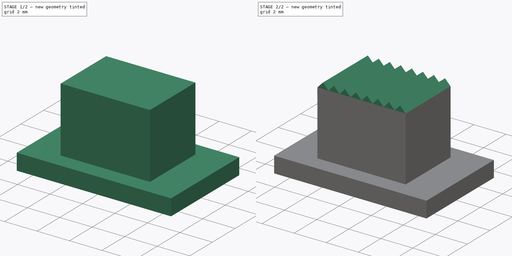
[diagram: build sequence overview — one tinted view per stage of 2, left to right]
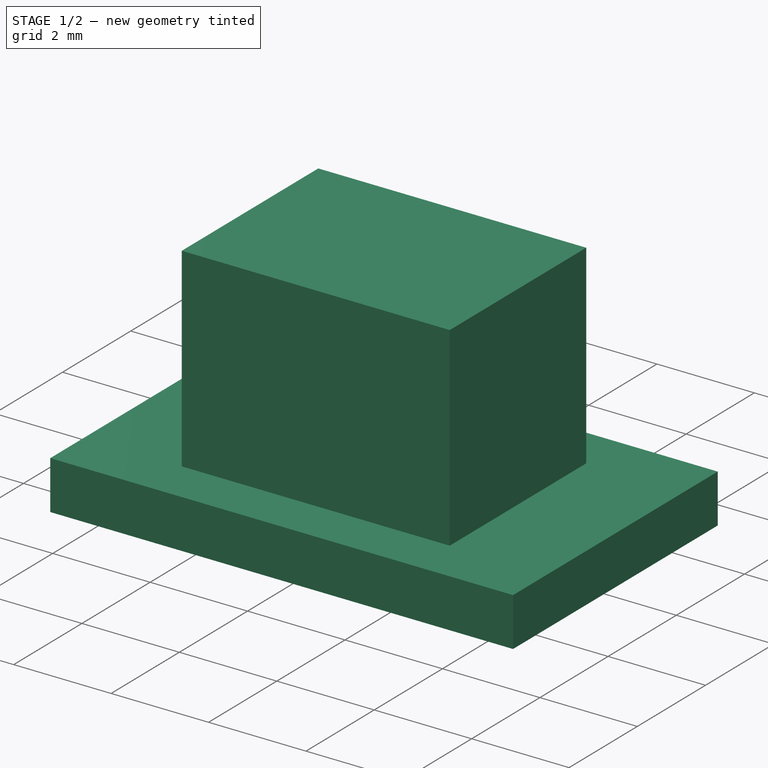
[diagram: stage 1 of 2 — iso view after this stage's code; geometry added in this stage tinted green]
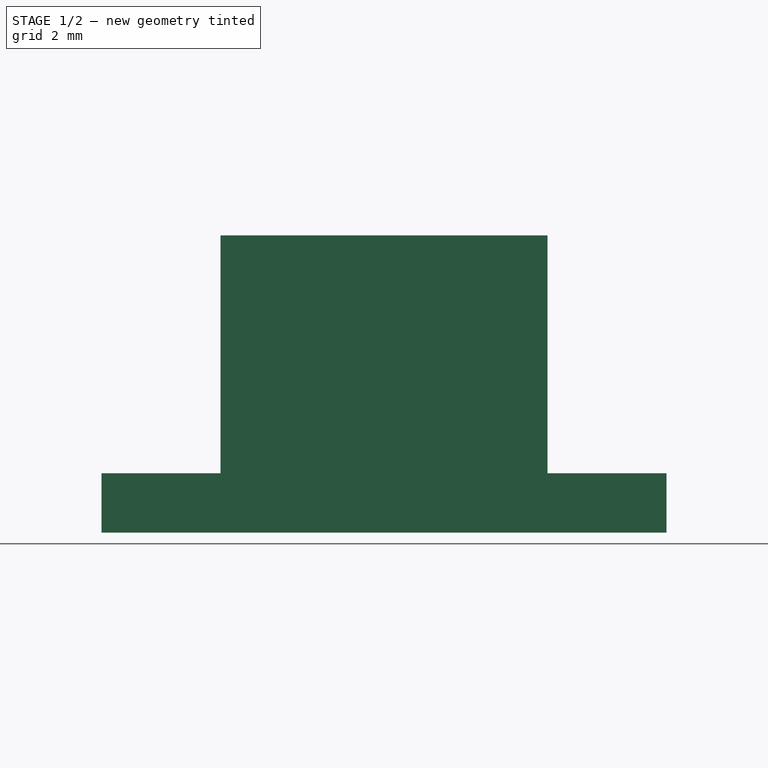
[diagram: stage 1 of 2 — front view after this stage's code; geometry added in this stage tinted green]
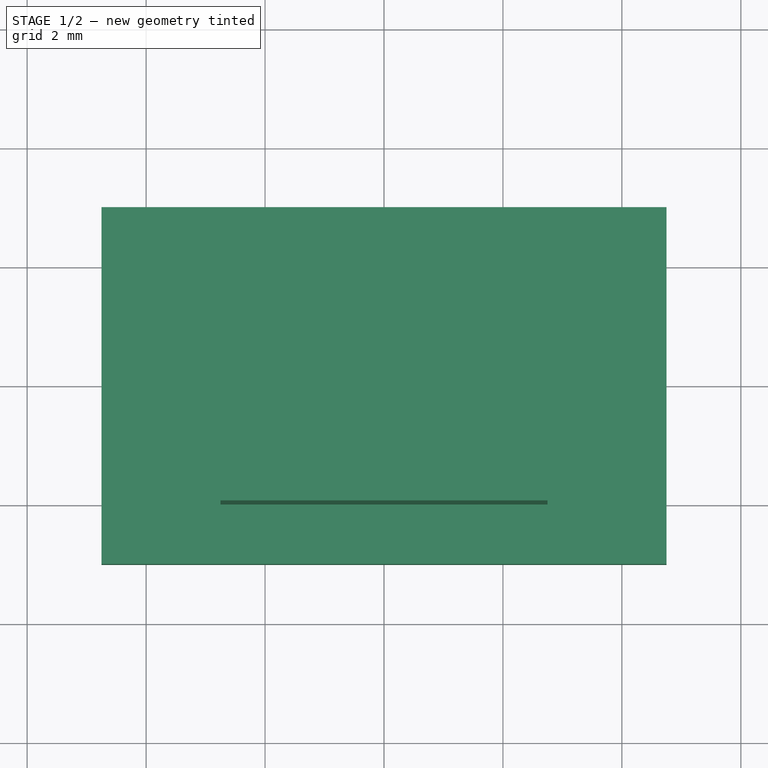
[diagram: stage 1 of 2 — top view after this stage's code; geometry added in this stage tinted green]
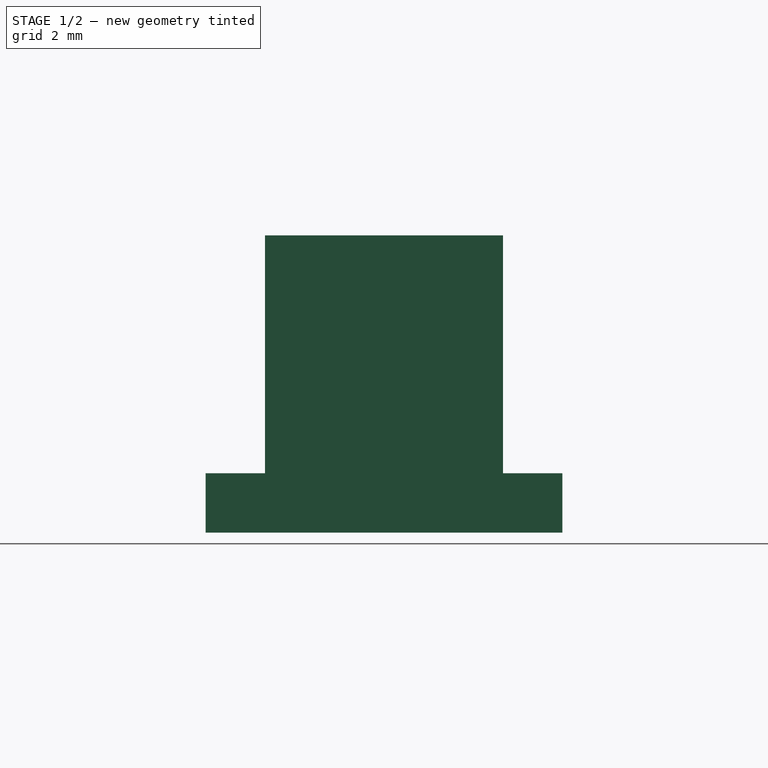
[diagram: stage 1 of 2 — right view after this stage's code; geometry added in this stage tinted green]
FCSTD DOCUMENT  (FreeCAD 0.19R24276 (Git))
Label: TFT_esp32onoff
License: All rights reserved
LicenseURL: http://en.wikipedia.org/wiki/All_rights_reserved
objects: Sketcher::SketchObject×4, PartDesign::Pad×3, PartDesign::Pocket×1, PartDesign::Body×1
note: 13 computed .brp shape members not serialized (recipe doc carries the construction recipe); baked Part::Feature solids carry a one-line shape summary decoded from their .brp

FEATURE [Sketcher::SketchObject] Sketch
  FullyConstrained = true
  MapMode = 5
  Support = -> [XY_Plane]
  sketch-geometry (8):
    g0: LineSegment StartX=-4.75 StartY=3 StartZ=0 EndX=4.75 EndY=3 EndZ=0
    g1: LineSegment StartX=4.75 StartY=3 StartZ=0 EndX=4.75 EndY=-3 EndZ=0
    g2: LineSegment StartX=4.75 StartY=-3 StartZ=0 EndX=-4.75 EndY=-3 EndZ=0
    g3: LineSegment StartX=-4.75 StartY=-3 StartZ=0 EndX=-4.75 EndY=3 EndZ=0
    g4: LineSegment StartX=0.6 StartY=0.675 StartZ=0 EndX=2.25 EndY=0.675 EndZ=0
    g5: LineSegment StartX=2.25 StartY=0.675 StartZ=0 EndX=2.25 EndY=-0.675 EndZ=0
    g6: LineSegment StartX=2.25 StartY=-0.675 StartZ=0 EndX=0.6 EndY=-0.675 EndZ=0
    g7: LineSegment StartX=0.6 StartY=-0.675 StartZ=0 EndX=0.6 EndY=0.675 EndZ=0
  constraints (21):
    c: Coincident(g0,g1)
    c: Coincident(g1,g2)
    c: Coincident(g2,g3)
    c: Coincident(g3,g0)
    c: Horizontal(g2)
    c: Vertical(g3)
    c: DistanceX(g0,g0) = 9.5
    c: DistanceY(g1,g1) = 6
    c: Coincident(g4,g5)
    c: Coincident(g5,g6)
    c: Coincident(g6,g7)
    c: Coincident(g7,g4)
    c: Horizontal(g4)
    c: Horizontal(g6)
    c: Vertical(g7)
    c: DistanceX(g4,g4) = 1.65
    c: DistanceY(g5,g5) = 1.35
    c: Symmetric(g0,g1,g-1)
    c: Symmetric(g4,g5,g-1)
    c: DistanceX(g4,g0) = 2.5
    c: Symmetric(g0,g0,g-2)
FEATURE [PartDesign::Pad] Pad
  Direction = (1,1,1)
  Length = 1
  Length2 = 100
  Profile = -> Sketch
  Type = 0
FEATURE [Sketcher::SketchObject] Sketch001
  FullyConstrained = true
  MapMode = 5
  Placement = pos=(0,0,1) rot=(0,0,1;0rad)
  Support = -> [Pad]
  sketch-geometry (4):
    g0: LineSegment StartX=-2.75 StartY=2 StartZ=0 EndX=2.75 EndY=2 EndZ=0
    g1: LineSegment StartX=2.75 StartY=2 StartZ=0 EndX=2.75 EndY=-2 EndZ=0
    g2: LineSegment StartX=2.75 StartY=-2 StartZ=0 EndX=-2.75 EndY=-2 EndZ=0
    g3: LineSegment StartX=-2.75 StartY=-2 StartZ=0 EndX=-2.75 EndY=2 EndZ=0
  constraints (10):
    c: Coincident(g0,g1)
    c: Coincident(g1,g2)
    c: Coincident(g2,g3)
    c: Coincident(g3,g0)
    c: Horizontal(g2)
    c: Vertical(g3)
    c: DistanceX(g0,g0) = 5.5
    c: DistanceY(g1,g1) = 4
    c: Symmetric(g0,g0,g-2)
    c: Symmetric(g0,g1,g-1)
FEATURE [PartDesign::Pad] Pad001
  BaseFeature = -> Pad
  Direction = (1,1,1)
  Length = 4
  Length2 = 100
  Profile = -> Sketch001
  Type = 0
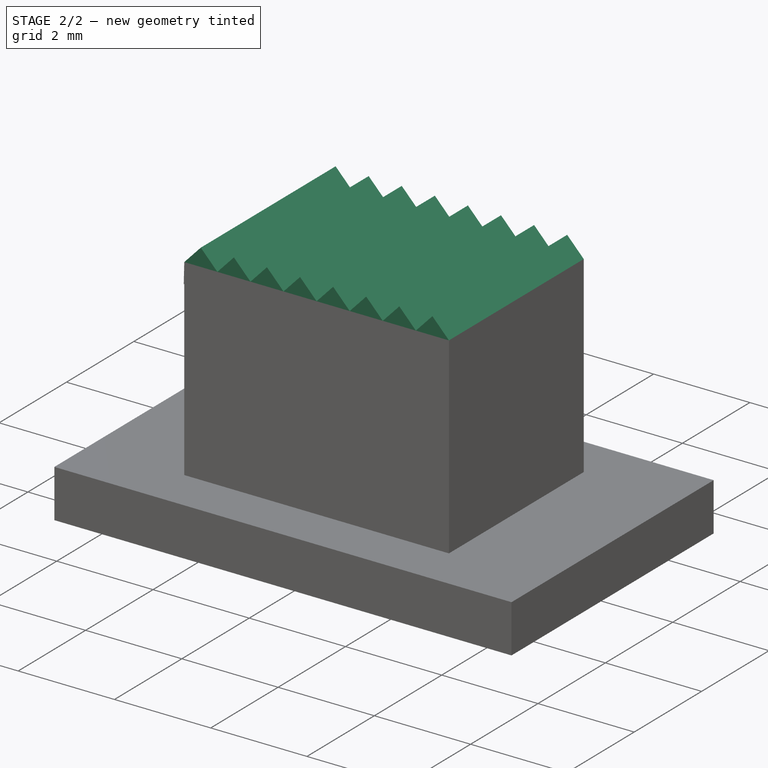
[diagram: stage 2 of 2 — iso view after this stage's code; geometry added in this stage tinted green]
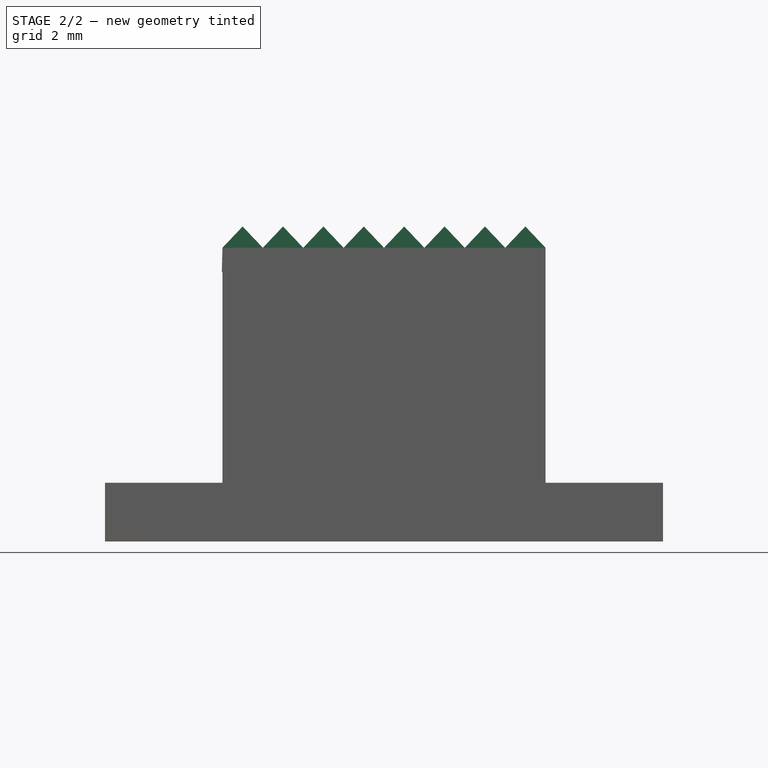
[diagram: stage 2 of 2 — front view after this stage's code; geometry added in this stage tinted green]
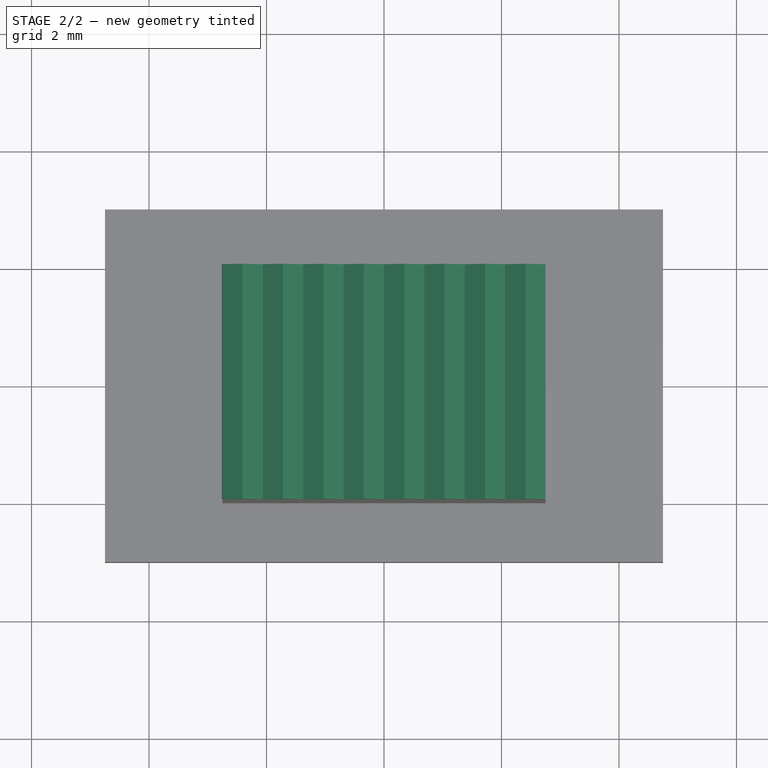
[diagram: stage 2 of 2 — top view after this stage's code; geometry added in this stage tinted green]
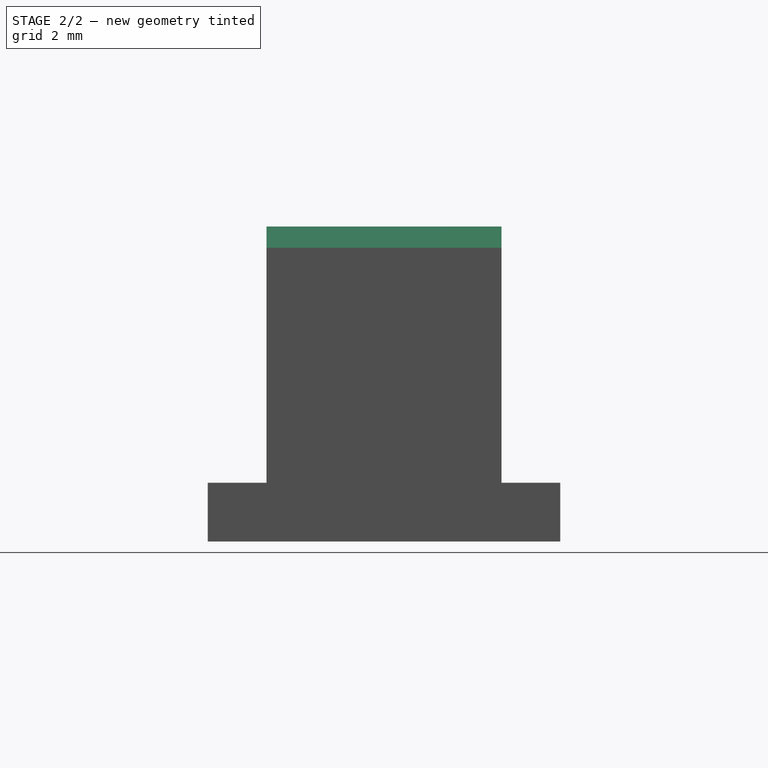
[diagram: stage 2 of 2 — right view after this stage's code; geometry added in this stage tinted green]
FEATURE [Sketcher::SketchObject] Sketch002
  ExternalGeometry = -> [Pad001]
  FullyConstrained = true
  MapMode = 5
  Placement = pos=(0,0,0) rot=(1,0,0;3.14159rad)
  Support = -> [Pad001]
  sketch-geometry (4):
    g0: LineSegment StartX=0.6 StartY=0.675 StartZ=0 EndX=2.25 EndY=0.675 EndZ=0
    g1: LineSegment StartX=2.25 StartY=0.675 StartZ=0 EndX=2.25 EndY=-0.675 EndZ=0
    g2: LineSegment StartX=2.25 StartY=-0.675 StartZ=0 EndX=0.6 EndY=-0.675 EndZ=0
    g3: LineSegment StartX=0.6 StartY=-0.675 StartZ=0 EndX=0.6 EndY=0.675 EndZ=0
  constraints (11):
    c: Coincident(g0,g1)
    c: Coincident(g1,g2)
    c: Coincident(g2,g3)
    c: Coincident(g3,g0)
    c: Horizontal(g0)
    c: Horizontal(g2)
    c: Vertical(g1)
    c: Vertical(g3)
    c: Equal(g0,g-3)
    c: Equal(g1,g-4)
    c: Coincident(g0,g-3)
FEATURE [PartDesign::Pocket] Pocket
  BaseFeature = -> Pad001
  Length = 2
  Length2 = 100
  Profile = -> Sketch002
  Type = 0
FEATURE [Sketcher::SketchObject] Sketch003
  ExternalGeometry = -> [Pocket]
  FullyConstrained = false
  MapMode = 5
  Placement = pos=(0,2,0) rot=(0,0.707107,0.707107;3.14159rad)
  Support = -> [Pocket]
  sketch-geometry (19):
    g0: LineSegment StartX=-2.75 StartY=5 StartZ=0 EndX=-2.40625 EndY=5.36309 EndZ=0
    g1: LineSegment StartX=-2.40625 StartY=5.36309 StartZ=0 EndX=-2.0625 EndY=5 EndZ=0
    g2: LineSegment StartX=-2.0625 StartY=5 StartZ=0 EndX=-1.71875 EndY=5.36309 EndZ=0
    g3: LineSegment StartX=-1.71875 StartY=5.36309 StartZ=0 EndX=-1.375 EndY=5 EndZ=0
    g4: LineSegment StartX=-1.375 StartY=5 StartZ=0 EndX=-1.03125 EndY=5.36309 EndZ=0
    g5: LineSegment StartX=-1.03125 StartY=5.36309 StartZ=0 EndX=-0.6875 EndY=5 EndZ=0
    g6: LineSegment StartX=-0.6875 StartY=5 StartZ=0 EndX=-0.34375 EndY=5.36309 EndZ=0
    g7: LineSegment StartX=-0.34375 StartY=5.36309 StartZ=0 EndX=-5.906e-11 EndY=5 EndZ=0
    g8: LineSegment StartX=-5.906e-11 StartY=5 StartZ=0 EndX=0.34375 EndY=5.36309 EndZ=0
    g9: LineSegment StartX=0.34375 StartY=5.36309 StartZ=0 EndX=0.6875 EndY=5 EndZ=0
    g10: LineSegment StartX=0.6875 StartY=5 StartZ=0 EndX=1.03125 EndY=5.36309 EndZ=0
    g11: LineSegment StartX=1.03125 StartY=5.36309 StartZ=0 EndX=1.375 EndY=5 EndZ=0
    g12: LineSegment StartX=1.375 StartY=5 StartZ=0 EndX=1.71875 EndY=5.36309 EndZ=0
    g13: LineSegment StartX=1.71875 StartY=5.36309 StartZ=0 EndX=2.0625 EndY=5 EndZ=0
    g14: LineSegment StartX=2.0625 StartY=5 StartZ=0 EndX=2.40625 EndY=5.36309 EndZ=0
    g15: LineSegment StartX=2.40625 StartY=5.36309 StartZ=0 EndX=2.75 EndY=5 EndZ=0
    g16: LineSegment StartX=-2.75 StartY=5 StartZ=0 EndX=-2.75 EndY=4.58407 EndZ=0
    g17: LineSegment StartX=-2.75 StartY=4.58407 StartZ=0 EndX=2.76071 EndY=4.58407 EndZ=0
    g18: LineSegment StartX=2.76071 StartY=4.58407 StartZ=0 EndX=2.75 EndY=5 EndZ=0
  constraints (55):
    c: Coincident(g0,g1)
    c: Coincident(g1,g2)
    c: Coincident(g2,g3)
    c: Coincident(g3,g4)
    c: Coincident(g4,g5)
    c: Coincident(g5,g6)
    c: Coincident(g6,g7)
    c: Coincident(g7,g8)
    c: Coincident(g8,g9)
    c: Coincident(g9,g10)
    c: Coincident(g10,g11)
    c: Coincident(g11,g12)
    c: Coincident(g12,g13)
    c: Coincident(g13,g14)
    c: Coincident(g14,g15)
    c: Distance(g0) = 0.5
    c: Equal(g0,g1)
    c: Equal(g1,g2)
    c: Equal(g2,g3)
    c: Equal(g3,g4)
    c: Equal(g4,g5)
    c: Equal(g5,g6)
    c: Equal(g6,g7)
    c: Equal(g7,g8)
    c: Equal(g8,g9)
    c: Equal(g9,g10)
    c: Equal(g10,g11)
    c: Equal(g11,g12)
    c: Equal(g12,g13)
    c: Equal(g13,g14)
    c: Equal(g14,g15)
    c: Horizontal(g0,g2)
    c: Horizontal(g2,g4)
    c: Horizontal(g4,g6)
    c: Horizontal(g6,g8)
    c: Horizontal(g8,g10)
    c: Horizontal(g10,g12)
    c: Horizontal(g12,g14)
    c: Horizontal(g0,g1)
    c: Horizontal(g1,g3)
    c: Horizontal(g3,g5)
    c: Horizontal(g5,g7)
    c: Horizontal(g7,g9)
    c: Horizontal(g9,g11)
    c: Horizontal(g11,g13)
    c: Horizontal(g13,g15)
    c: DistanceX(g-3,g0) = 0
    c: DistanceX(g-3,g15) = 0
    c: DistanceY(g0,g-3) = 0
    c: Coincident(g0,g16)
    c: Vertical(g16)
    c: Coincident(g16,g17)
    c: Horizontal(g17)
    c: Coincident(g17,g18)
    c: Coincident(g18,g15)
FEATURE [PartDesign::Pad] Pad002
  BaseFeature = -> Pocket
  Direction = (1,1,1)
  Length = 4
  Length2 = 100
  Profile = -> Sketch003
  Reversed = true
  Type = 0
FEATURE [PartDesign::Body] Body
  Group = -> [Sketch,Pad,Sketch001,Pad001,Sketch002,Pocket,Sketch003,Pad002]
  Origin = -> Origin
  Tip = -> Pad002
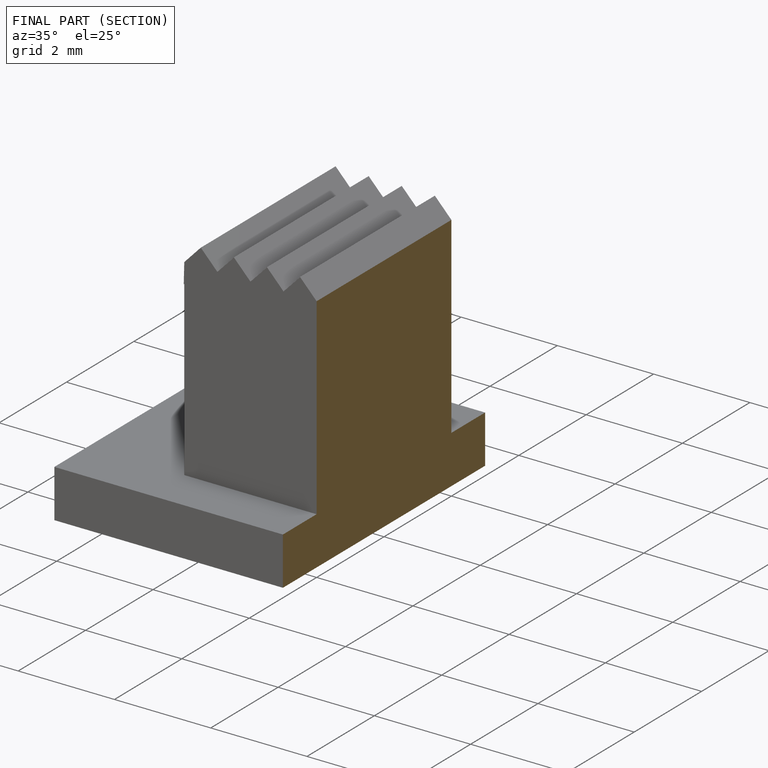
[diagram: finished part — half-section view (interior)]
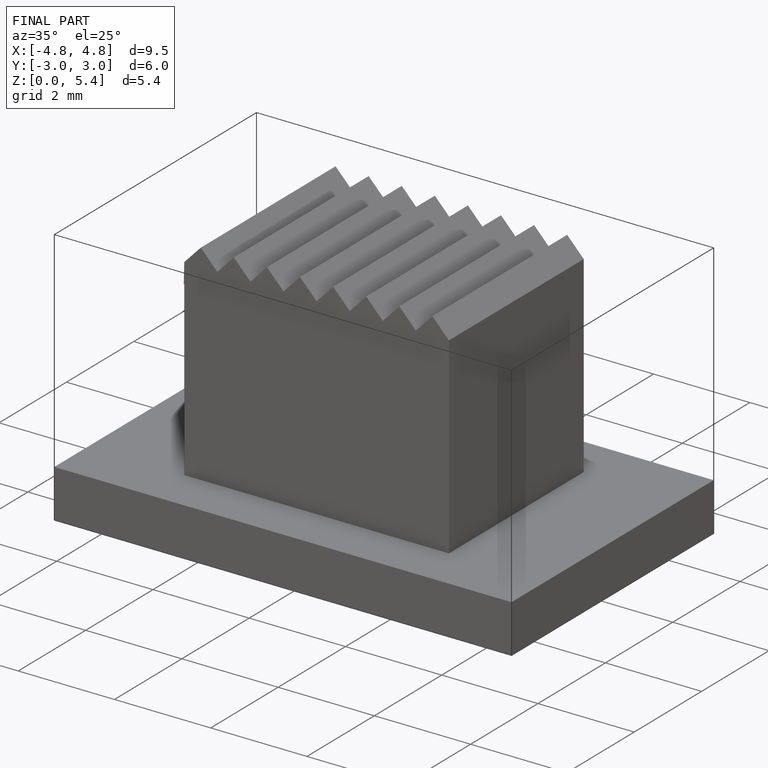
[diagram: finished part — iso view with bounding-box wireframe]
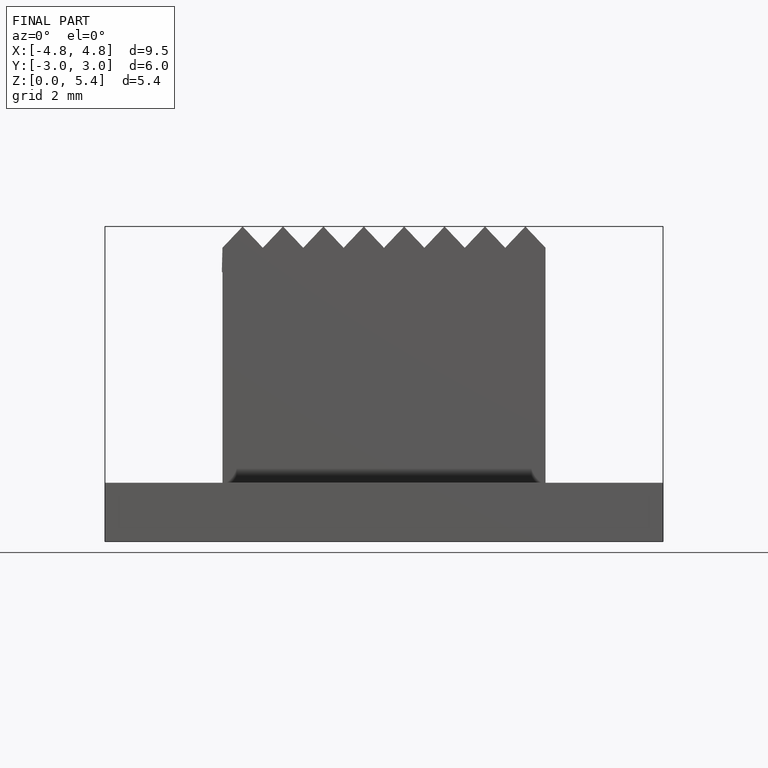
[diagram: finished part — front view with bounding-box wireframe]
